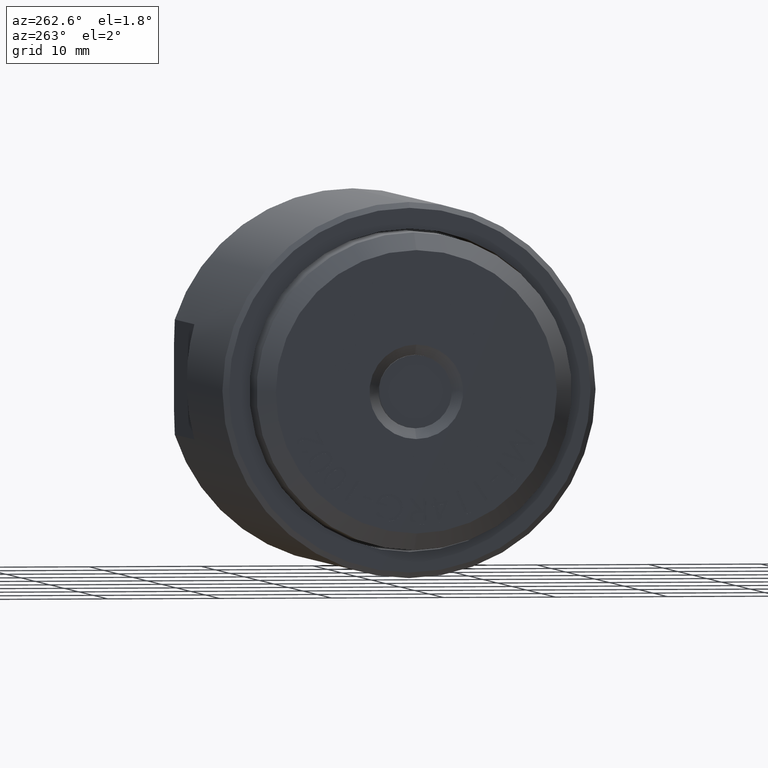
[diagram: clean part render]
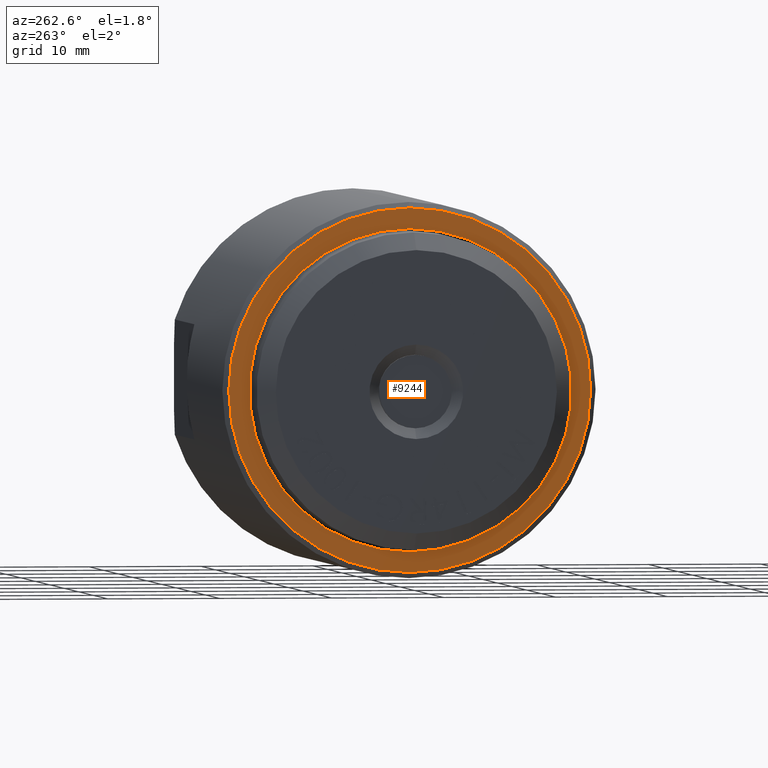
[diagram: same view with one face highlighted and labeled with its STEP entity id]
A machine part, auxiliary view. The second image highlights one B-rep face of the part: STEP entity #9244.
In plain terms, the highlighted planar face has unit normal (-1, 0, -0).
Its self-contained STEP definition (entity closure, byte-faithful):
#152 = AXIS2_PLACEMENT_3D ( 'NONE', #7710, #9437, #4178 ) ;
#556 = EDGE_CURVE ( 'NONE', #8559, #8388, #9638, .T. ) ;
#563 = CARTESIAN_POINT ( 'NONE',  ( -0.2585000000000000075, 0.0000000000000000000, 0.0000000000000000000 ) ) ;
#963 = DIRECTION ( 'NONE',  ( 0.0000000000000000000, 0.0000000000000000000, 1.000000000000000000 ) ) ;
#1152 = ORIENTED_EDGE ( 'NONE', *, *, #1440, .T. ) ;
#1440 = EDGE_CURVE ( 'NONE', #2900, #5970, #8326, .T. ) ;
#1774 = CARTESIAN_POINT ( 'NONE',  ( -0.2585000000000000075, 0.0000000000000000000, 0.0000000000000000000 ) ) ;
#1839 = CIRCLE ( 'NONE', #7547, 0.6362999999999999767 ) ;
#2204 = CARTESIAN_POINT ( 'NONE',  ( -0.2585000000000000075, 0.0000000000000000000, 0.0000000000000000000 ) ) ;
#2277 = DIRECTION ( 'NONE',  ( -1.000000000000000000, -0.0000000000000000000, -0.0000000000000000000 ) ) ;
#2390 = CARTESIAN_POINT ( 'NONE',  ( -0.2585000000000000075, 0.0000000000000000000, 0.0000000000000000000 ) ) ;
#2898 = ORIENTED_EDGE ( 'NONE', *, *, #556, .F. ) ;
#2900 = VERTEX_POINT ( 'NONE', #8449 ) ;
#3188 = CIRCLE ( 'NONE', #5259, 0.5639999999999999458 ) ;
#3232 = FACE_BOUND ( 'NONE', #7955, .T. ) ;
#3458 = CARTESIAN_POINT ( 'NONE',  ( -0.2585000000000000075, 0.0000000000000000000, 0.5639999999999999458 ) ) ;
#3564 = CARTESIAN_POINT ( 'NONE',  ( -0.2585000000000000075, 7.914892262889343632E-17, 0.6362999999999999767 ) ) ;
#3727 = AXIS2_PLACEMENT_3D ( 'NONE', #563, #10863, #963 ) ;
#4178 = DIRECTION ( 'NONE',  ( -0.0000000000000000000, 0.0000000000000000000, 1.000000000000000000 ) ) ;
#4755 = DIRECTION ( 'NONE',  ( -1.000000000000000000, -0.0000000000000000000, -0.0000000000000000000 ) ) ;
#5005 = FACE_OUTER_BOUND ( 'NONE', #6665, .T. ) ;
#5259 = AXIS2_PLACEMENT_3D ( 'NONE', #2204, #4755, #10261 ) ;
#5323 = DIRECTION ( 'NONE',  ( 0.0000000000000000000, 0.0000000000000000000, 1.000000000000000000 ) ) ;
#5970 = VERTEX_POINT ( 'NONE', #3564 ) ;
#6606 = EDGE_CURVE ( 'NONE', #5970, #2900, #1839, .T. ) ;
#6665 = EDGE_LOOP ( 'NONE', ( #1152, #8793 ) ) ;
#6928 = CARTESIAN_POINT ( 'NONE',  ( -0.2585000000000000075, 6.907007947191071586E-17, -0.5639999999999999458 ) ) ;
#7547 = AXIS2_PLACEMENT_3D ( 'NONE', #2390, #2277, #8604 ) ;
#7710 = CARTESIAN_POINT ( 'NONE',  ( -0.2585000000000000075, 1.220924457749329560E-16, 0.0000000000000000000 ) ) ;
#7955 = EDGE_LOOP ( 'NONE', ( #2898, #11803 ) ) ;
#8326 = CIRCLE ( 'NONE', #10231, 0.6362999999999999767 ) ;
#8388 = VERTEX_POINT ( 'NONE', #6928 ) ;
#8449 = CARTESIAN_POINT ( 'NONE',  ( -0.2585000000000000075, 0.0000000000000000000, -0.6362999999999999767 ) ) ;
#8559 = VERTEX_POINT ( 'NONE', #3458 ) ;
#8604 = DIRECTION ( 'NONE',  ( 0.0000000000000000000, 0.0000000000000000000, 1.000000000000000000 ) ) ;
#8740 = EDGE_CURVE ( 'NONE', #8388, #8559, #3188, .T. ) ;
#8793 = ORIENTED_EDGE ( 'NONE', *, *, #6606, .T. ) ;
#8925 = DIRECTION ( 'NONE',  ( -1.000000000000000000, -0.0000000000000000000, -0.0000000000000000000 ) ) ;
#9244 = ADVANCED_FACE ( 'NONE', ( #5005, #3232 ), #10389, .T. ) ;
#9437 = DIRECTION ( 'NONE',  ( -1.000000000000000000, 0.0000000000000000000, -0.0000000000000000000 ) ) ;
#9638 = CIRCLE ( 'NONE', #3727, 0.5639999999999999458 ) ;
#10231 = AXIS2_PLACEMENT_3D ( 'NONE', #1774, #8925, #5323 ) ;
#10261 = DIRECTION ( 'NONE',  ( 0.0000000000000000000, 0.0000000000000000000, 1.000000000000000000 ) ) ;
#10389 = PLANE ( 'NONE',  #152 ) ;
#10863 = DIRECTION ( 'NONE',  ( -1.000000000000000000, -0.0000000000000000000, -0.0000000000000000000 ) ) ;
#11803 = ORIENTED_EDGE ( 'NONE', *, *, #8740, .F. ) ;